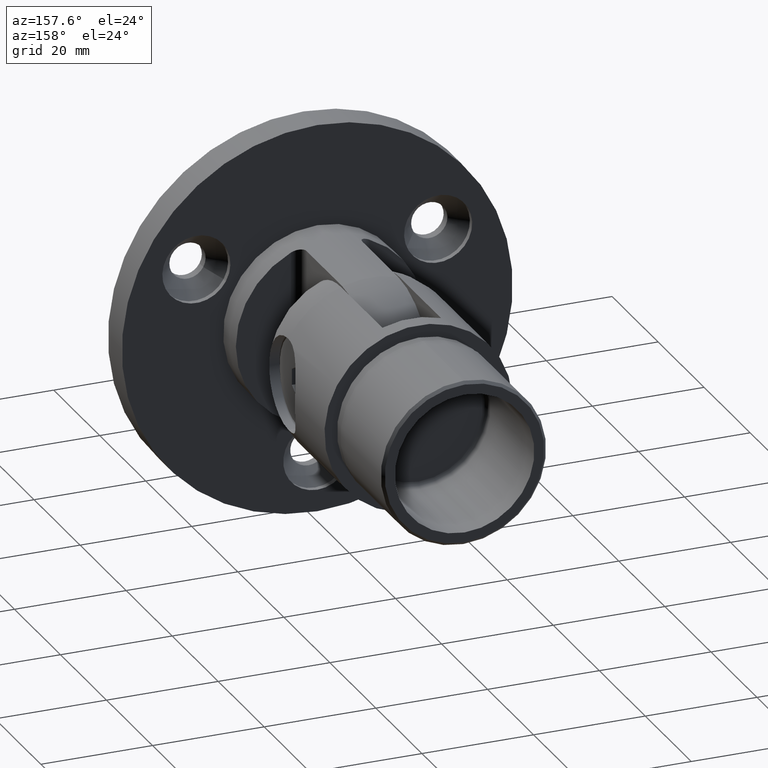
[diagram: clean part render]
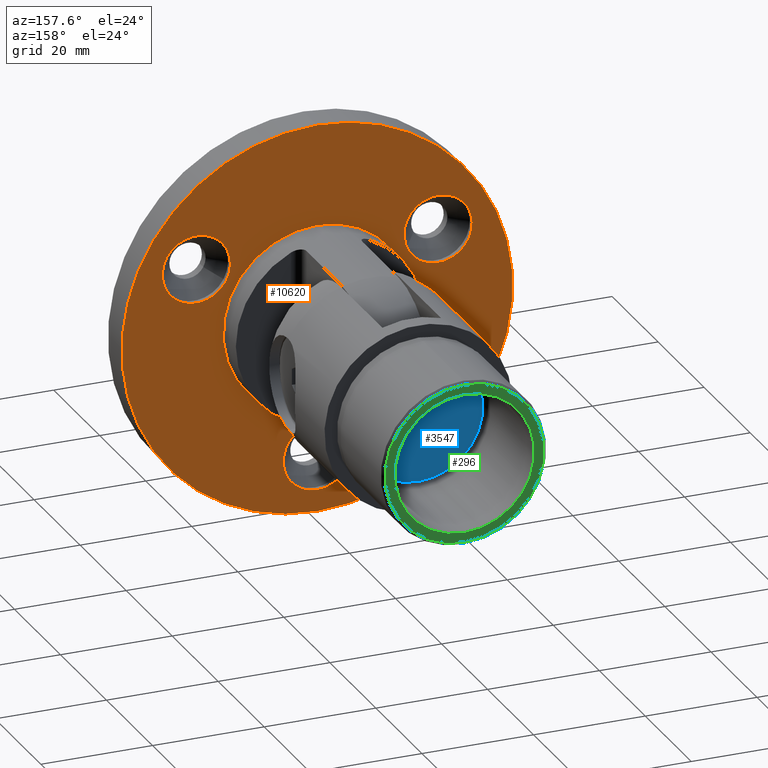
[diagram: same view with three faces highlighted in distinct colors, each labeled with its STEP entity id]
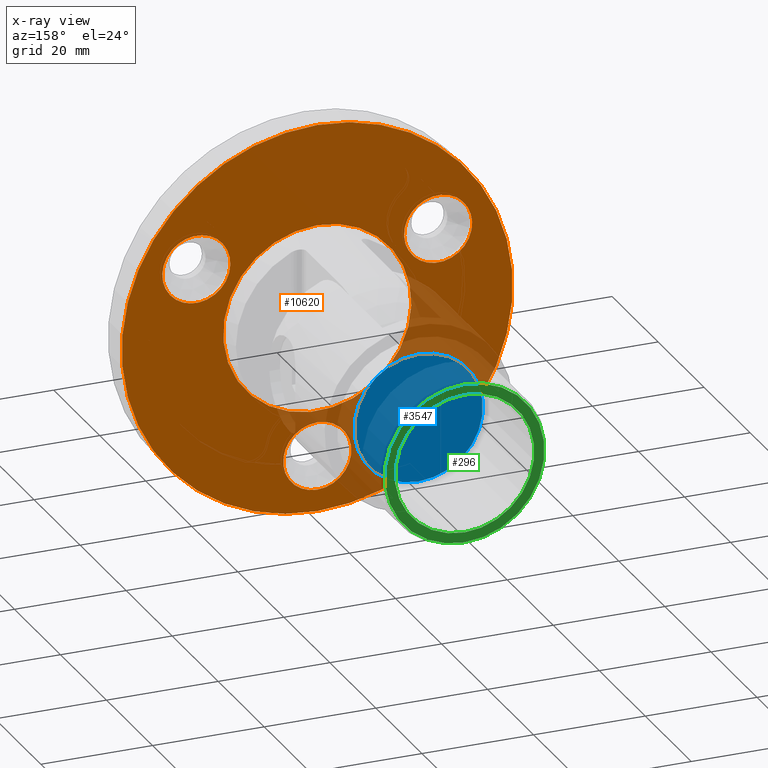
[diagram: x-ray of the same camera — body ghosted, the three highlighted faces saturated]
A machine part, auxiliary view with three faces highlighted in distinct colors.
The next image is the same camera in x-ray (body ghosted, the three faces saturated) — at least one of them is partly hidden behind the body in this view.
Their STEP definitions:

[orange] entity #10620 — the highlighted planar face has unit normal (0, 1, 0).
#334 = CIRCLE ( 'NONE', #14929, 35.00000000000000711 ) ;
#528 = CARTESIAN_POINT ( 'NONE',  ( 0.000000000000000000, 6.000000000000000000, -18.89999999999999858 ) ) ;
#607 = DIRECTION ( 'NONE',  ( -0.000000000000000000, 1.000000000000000000, -0.000000000000000000 ) ) ;
#779 = CARTESIAN_POINT ( 'NONE',  ( -16.36788013152597898, 6.000000000000000000, 9.449999999999848299 ) ) ;
#901 = CARTESIAN_POINT ( 'NONE',  ( 21.65063509461091584, 6.000000000000000000, 12.50000000000010303 ) ) ;
#1030 = CIRCLE ( 'NONE', #4331, 16.85000000000000142 ) ;
#1059 = CIRCLE ( 'NONE', #2056, 6.100000000000001421 ) ;
#1256 = VERTEX_POINT ( 'NONE', #528 ) ;
#1326 = CIRCLE ( 'NONE', #13996, 6.100000000000001421 ) ;
#1769 = CARTESIAN_POINT ( 'NONE',  ( 0.000000000000000000, 6.000000000000000000, 0.000000000000000000 ) ) ;
#1897 = EDGE_LOOP ( 'NONE', ( #15079 ) ) ;
#1912 = DIRECTION ( 'NONE',  ( 0.000000000000000000, 0.000000000000000000, 1.000000000000000000 ) ) ;
#2004 = CARTESIAN_POINT ( 'NONE',  ( 0.000000000000000000, 6.000000000000000000, 35.00000000000000711 ) ) ;
#2056 = AXIS2_PLACEMENT_3D ( 'NONE', #2091, #8259, #4593 ) ;
#2091 = CARTESIAN_POINT ( 'NONE',  ( -21.65063509461108282, 6.000000000000000000, 12.49999999999979927 ) ) ;
#2487 = FACE_BOUND ( 'NONE', #6783, .T. ) ;
#4246 = ORIENTED_EDGE ( 'NONE', *, *, #4281, .F. ) ;
#4248 = AXIS2_PLACEMENT_3D ( 'NONE', #4981, #7434, #8699 ) ;
#4274 = ORIENTED_EDGE ( 'NONE', *, *, #15501, .T. ) ;
#4281 = EDGE_CURVE ( 'NONE', #1256, #1256, #1326, .T. ) ;
#4331 = AXIS2_PLACEMENT_3D ( 'NONE', #6828, #9307, #1912 ) ;
#4474 = DIRECTION ( 'NONE',  ( -0.8660254037844362651, 0.000000000000000000, -0.5000000000000041078 ) ) ;
#4593 = DIRECTION ( 'NONE',  ( 0.8660254037844433705, 0.000000000000000000, -0.4999999999999917843 ) ) ;
#4981 = CARTESIAN_POINT ( 'NONE',  ( 0.000000000000000000, 6.000000000000000000, 0.000000000000000000 ) ) ;
#5191 = FACE_OUTER_BOUND ( 'NONE', #13580, .T. ) ;
#5377 = CARTESIAN_POINT ( 'NONE',  ( 0.000000000000000000, 6.000000000000000000, -25.00000000000000000 ) ) ;
#5388 = EDGE_LOOP ( 'NONE', ( #4246 ) ) ;
#6648 = DIRECTION ( 'NONE',  ( 0.000000000000000000, 0.000000000000000000, 1.000000000000000000 ) ) ;
#6783 = EDGE_LOOP ( 'NONE', ( #9243 ) ) ;
#6828 = CARTESIAN_POINT ( 'NONE',  ( 0.000000000000000000, 6.000000000000000000, 0.000000000000000000 ) ) ;
#6870 = CARTESIAN_POINT ( 'NONE',  ( 16.36788013152585464, 6.000000000000000000, 9.450000000000077449 ) ) ;
#7434 = DIRECTION ( 'NONE',  ( 0.000000000000000000, 1.000000000000000000, 0.000000000000000000 ) ) ;
#7666 = FACE_BOUND ( 'NONE', #8082, .T. ) ;
#8038 = CIRCLE ( 'NONE', #13554, 6.099999999999998757 ) ;
#8040 = EDGE_CURVE ( 'NONE', #11610, #11610, #1059, .T. ) ;
#8082 = EDGE_LOOP ( 'NONE', ( #8135 ) ) ;
#8135 = ORIENTED_EDGE ( 'NONE', *, *, #10927, .F. ) ;
#8259 = DIRECTION ( 'NONE',  ( 0.000000000000000000, 1.000000000000000000, 0.000000000000000000 ) ) ;
#8351 = DIRECTION ( 'NONE',  ( 0.000000000000000000, 1.000000000000000000, 0.000000000000000000 ) ) ;
#8699 = DIRECTION ( 'NONE',  ( 0.000000000000000000, -0.000000000000000000, 1.000000000000000000 ) ) ;
#8750 = VERTEX_POINT ( 'NONE', #10483 ) ;
#9210 = FACE_BOUND ( 'NONE', #5388, .T. ) ;
#9218 = EDGE_CURVE ( 'NONE', #8750, #8750, #1030, .T. ) ;
#9243 = ORIENTED_EDGE ( 'NONE', *, *, #9218, .F. ) ;
#9307 = DIRECTION ( 'NONE',  ( 0.000000000000000000, 1.000000000000000000, 0.000000000000000000 ) ) ;
#9876 = PLANE ( 'NONE',  #4248 ) ;
#10483 = CARTESIAN_POINT ( 'NONE',  ( 0.000000000000000000, 6.000000000000000000, 16.85000000000000142 ) ) ;
#10620 = ADVANCED_FACE ( 'NONE', ( #10929, #7666, #9210, #2487, #5191 ), #9876, .T. ) ;
#10840 = VERTEX_POINT ( 'NONE', #6870 ) ;
#10927 = EDGE_CURVE ( 'NONE', #10840, #10840, #8038, .T. ) ;
#10929 = FACE_BOUND ( 'NONE', #1897, .T. ) ;
#11610 = VERTEX_POINT ( 'NONE', #779 ) ;
#11919 = DIRECTION ( 'NONE',  ( 0.000000000000000000, 0.000000000000000000, 1.000000000000000000 ) ) ;
#11961 = VERTEX_POINT ( 'NONE', #2004 ) ;
#13554 = AXIS2_PLACEMENT_3D ( 'NONE', #901, #14366, #4474 ) ;
#13580 = EDGE_LOOP ( 'NONE', ( #4274 ) ) ;
#13996 = AXIS2_PLACEMENT_3D ( 'NONE', #5377, #607, #6648 ) ;
#14366 = DIRECTION ( 'NONE',  ( 0.000000000000000000, 1.000000000000000000, 0.000000000000000000 ) ) ;
#14929 = AXIS2_PLACEMENT_3D ( 'NONE', #1769, #8351, #11919 ) ;
#15079 = ORIENTED_EDGE ( 'NONE', *, *, #8040, .F. ) ;
#15501 = EDGE_CURVE ( 'NONE', #11961, #11961, #334, .T. ) ;

[blue] entity #3547 — the highlighted planar face has unit normal (0, 1, 0).
#2716 = ORIENTED_EDGE ( 'NONE', *, *, #8035, .T. ) ;
#2743 = EDGE_LOOP ( 'NONE', ( #2716 ) ) ;
#3432 = FACE_OUTER_BOUND ( 'NONE', #2743, .T. ) ;
#3547 = ADVANCED_FACE ( 'NONE', ( #3432 ), #12484, .T. ) ;
#5291 = VERTEX_POINT ( 'NONE', #10631 ) ;
#5773 = DIRECTION ( 'NONE',  ( 0.000000000000000000, 0.000000000000000000, 1.000000000000000000 ) ) ;
#6423 = CIRCLE ( 'NONE', #6972, 11.50000000000000000 ) ;
#6972 = AXIS2_PLACEMENT_3D ( 'NONE', #11883, #10561, #5773 ) ;
#7533 = AXIS2_PLACEMENT_3D ( 'NONE', #10072, #10121, #12542 ) ;
#8035 = EDGE_CURVE ( 'NONE', #5291, #5291, #6423, .T. ) ;
#10072 = CARTESIAN_POINT ( 'NONE',  ( 0.000000000000000000, 37.85000000000000853, 0.000000000000000000 ) ) ;
#10121 = DIRECTION ( 'NONE',  ( 0.000000000000000000, 1.000000000000000000, 0.000000000000000000 ) ) ;
#10561 = DIRECTION ( 'NONE',  ( 0.000000000000000000, 1.000000000000000000, 0.000000000000000000 ) ) ;
#10631 = CARTESIAN_POINT ( 'NONE',  ( 0.000000000000000000, 37.85000000000000853, 11.50000000000000000 ) ) ;
#11883 = CARTESIAN_POINT ( 'NONE',  ( 0.000000000000000000, 37.85000000000000853, 0.000000000000000000 ) ) ;
#12484 = PLANE ( 'NONE',  #7533 ) ;
#12542 = DIRECTION ( 'NONE',  ( 0.000000000000000000, -0.000000000000000000, 1.000000000000000000 ) ) ;

[green] entity #296 — the highlighted planar face has unit normal (0, 1, 0).
#38 = DIRECTION ( 'NONE',  ( 0.000000000000000000, 1.000000000000000000, 0.000000000000000000 ) ) ;
#296 = ADVANCED_FACE ( 'NONE', ( #4402, #1749 ), #3125, .T. ) ;
#622 = CARTESIAN_POINT ( 'NONE',  ( 0.000000000000000000, 57.85000000000001563, 12.50000000000000000 ) ) ;
#869 = VERTEX_POINT ( 'NONE', #15363 ) ;
#1749 = FACE_BOUND ( 'NONE', #6736, .T. ) ;
#1996 = DIRECTION ( 'NONE',  ( 0.000000000000000000, -0.000000000000000000, 1.000000000000000000 ) ) ;
#3125 = PLANE ( 'NONE',  #3404 ) ;
#3176 = CARTESIAN_POINT ( 'NONE',  ( 0.000000000000000000, 57.85000000000001563, 0.000000000000000000 ) ) ;
#3404 = AXIS2_PLACEMENT_3D ( 'NONE', #3176, #10622, #1996 ) ;
#4045 = AXIS2_PLACEMENT_3D ( 'NONE', #4407, #12956, #14189 ) ;
#4402 = FACE_OUTER_BOUND ( 'NONE', #14749, .T. ) ;
#4407 = CARTESIAN_POINT ( 'NONE',  ( 0.000000000000000000, 57.85000000000001563, 0.000000000000000000 ) ) ;
#4832 = EDGE_CURVE ( 'NONE', #869, #869, #15635, .T. ) ;
#6736 = EDGE_LOOP ( 'NONE', ( #13217 ) ) ;
#7349 = CARTESIAN_POINT ( 'NONE',  ( 0.000000000000000000, 57.85000000000001563, 0.000000000000000000 ) ) ;
#9696 = VERTEX_POINT ( 'NONE', #622 ) ;
#10622 = DIRECTION ( 'NONE',  ( 0.000000000000000000, 1.000000000000000000, 0.000000000000000000 ) ) ;
#11291 = EDGE_CURVE ( 'NONE', #9696, #9696, #13764, .T. ) ;
#12146 = AXIS2_PLACEMENT_3D ( 'NONE', #7349, #38, #15814 ) ;
#12956 = DIRECTION ( 'NONE',  ( 0.000000000000000000, 1.000000000000000000, 0.000000000000000000 ) ) ;
#13217 = ORIENTED_EDGE ( 'NONE', *, *, #11291, .F. ) ;
#13764 = CIRCLE ( 'NONE', #4045, 12.50000000000000000 ) ;
#13795 = ORIENTED_EDGE ( 'NONE', *, *, #4832, .T. ) ;
#14189 = DIRECTION ( 'NONE',  ( 0.000000000000000000, 0.000000000000000000, 1.000000000000000000 ) ) ;
#14749 = EDGE_LOOP ( 'NONE', ( #13795 ) ) ;
#15363 = CARTESIAN_POINT ( 'NONE',  ( 0.000000000000000000, 57.85000000000001563, 14.29999999999999361 ) ) ;
#15635 = CIRCLE ( 'NONE', #12146, 14.29999999999999361 ) ;
#15814 = DIRECTION ( 'NONE',  ( 0.000000000000000000, 0.000000000000000000, 1.000000000000000000 ) ) ;